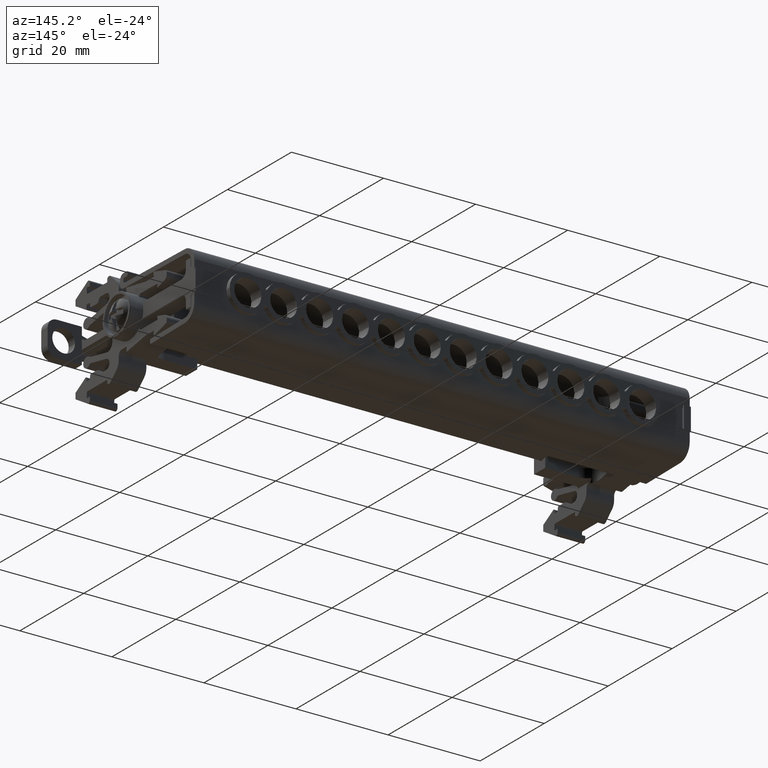
[diagram: clean part render]
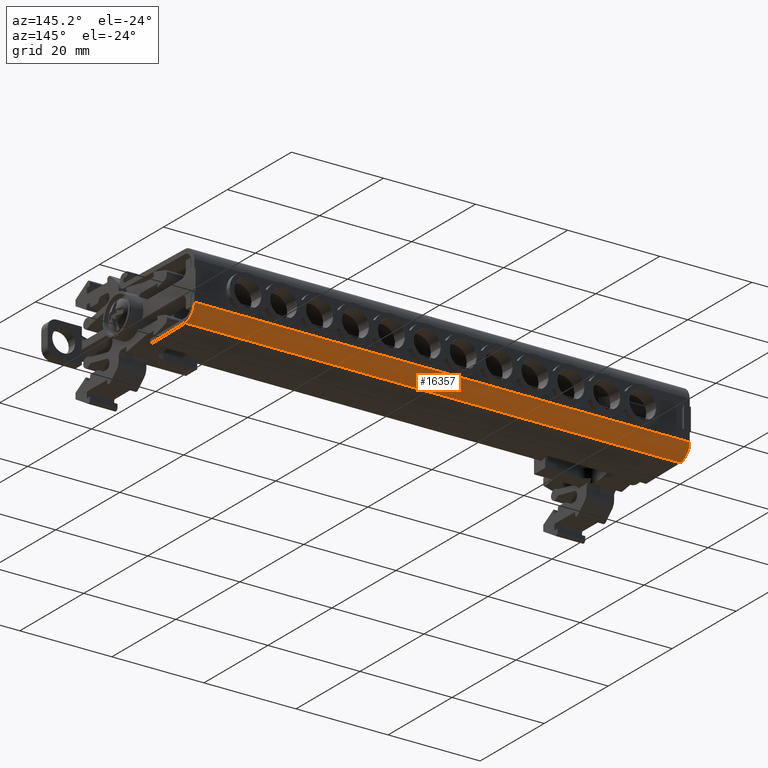
[diagram: same view with one face highlighted and labeled with its STEP entity id]
A machine part, auxiliary view. The second image highlights one B-rep face of the part: STEP entity #16357.
In plain terms, the highlighted cylindrical surface (edge-blend (fillet) strip) has radius 2.9989 mm, axis along (-1, -0, 0).
Its self-contained STEP definition (entity closure, byte-faithful):
#4704 = EDGE_LOOP ( 'NONE', ( #26989, #26993, #26947, #26948 ) ) ;
#11677 = EDGE_CURVE ( 'NONE', #29485, #29433, #12116, .T. ) ;
#11963 = EDGE_CURVE ( 'NONE', #29515, #29461, #12268, .T. ) ;
#12070 = EDGE_CURVE ( 'NONE', #29485, #29515, #17272, .T. ) ;
#12092 = VECTOR ( 'NONE', #19763, 1000.000000000000000 ) ;
#12115 = AXIS2_PLACEMENT_3D ( 'NONE', #16381, #16409, #16412 ) ;
#12116 = CIRCLE ( 'NONE', #12115, 2.998863636113954000 ) ;
#12261 = AXIS2_PLACEMENT_3D ( 'NONE', #17094, #17095, #17096 ) ;
#12268 = CIRCLE ( 'NONE', #12261, 2.998863636113954000 ) ;
#12312 = VECTOR ( 'NONE', #17236, 1000.000000000000000 ) ;
#15646 = EDGE_CURVE ( 'NONE', #29433, #29461, #19472, .T. ) ;
#16357 = ADVANCED_FACE ( 'NONE', ( #25360 ), #25353, .T. ) ;
#16381 = CARTESIAN_POINT ( 'NONE',  ( 24.22822092972948100, -24.79683233985381800, 91.79595446820579200 ) ) ;
#16409 = DIRECTION ( 'NONE',  ( 1.000000000000000000, 1.123605221867985000E-014, -1.149507329944757500E-014 ) ) ;
#16412 = DIRECTION ( 'NONE',  ( -1.156920544893285200E-014, 1.000000000000000000, 4.627682179573140900E-015 ) ) ;
#17094 = CARTESIAN_POINT ( 'NONE',  ( -83.37151391784041700, -24.79683233985458900, 91.79595446820634700 ) ) ;
#17095 = DIRECTION ( 'NONE',  ( 1.000000000000000000, 1.123605221868004800E-014, 2.470852055925285700E-015 ) ) ;
#17096 = DIRECTION ( 'NONE',  ( -9.255364359146281900E-015, 1.000000000000000000, 4.627682179573140900E-015 ) ) ;
#17236 = DIRECTION ( 'NONE',  ( -1.000000000000000000, -1.123605221867985000E-014, 1.149507329944757500E-014 ) ) ;
#17252 = CARTESIAN_POINT ( 'NONE',  ( -70.82626770582678000, -24.74449495282748800, 88.79754757355031800 ) ) ;
#17272 = LINE ( 'NONE', #17252, #12312 ) ;
#19472 = LINE ( 'NONE', #19474, #12092 ) ;
#19474 = CARTESIAN_POINT ( 'NONE',  ( 22.73827774791250500, -21.79796870373830600, 91.79595446820690100 ) ) ;
#19763 = DIRECTION ( 'NONE',  ( -1.000000000000000000, -1.123605221867985000E-014, 1.149507329944757500E-014 ) ) ;
#23649 = AXIS2_PLACEMENT_3D ( 'NONE', #25361, #25320, #25333 ) ;
#25320 = DIRECTION ( 'NONE',  ( -1.000000000000000000, -1.123605221867985000E-014, 1.149507329944757500E-014 ) ) ;
#25333 = DIRECTION ( 'NONE',  ( -9.255364359146270900E-015, -1.619688762850597300E-014, -1.000000000000000000 ) ) ;
#25353 = CYLINDRICAL_SURFACE ( 'NONE', #23649, 2.998863636113957600 ) ;
#25360 = FACE_OUTER_BOUND ( 'NONE', #4704, .T. ) ;
#25361 = CARTESIAN_POINT ( 'NONE',  ( -70.82626770582678000, -24.79683233985484500, 91.79595446820724200 ) ) ;
#26947 = ORIENTED_EDGE ( 'NONE', *, *, #12070, .T. ) ;
#26948 = ORIENTED_EDGE ( 'NONE', *, *, #11963, .T. ) ;
#26989 = ORIENTED_EDGE ( 'NONE', *, *, #15646, .F. ) ;
#26993 = ORIENTED_EDGE ( 'NONE', *, *, #11677, .F. ) ;
#29433 = VERTEX_POINT ( 'NONE', #30302 ) ;
#29461 = VERTEX_POINT ( 'NONE', #30327 ) ;
#29485 = VERTEX_POINT ( 'NONE', #30370 ) ;
#29515 = VERTEX_POINT ( 'NONE', #30355 ) ;
#30302 = CARTESIAN_POINT ( 'NONE',  ( 24.22822092972939200, -21.79796870373830600, 91.79595446820690100 ) ) ;
#30327 = CARTESIAN_POINT ( 'NONE',  ( -83.37151391783989100, -21.79796870373911200, 91.79595446820745500 ) ) ;
#30355 = CARTESIAN_POINT ( 'NONE',  ( -83.37151391783992000, -24.74449495282723200, 88.79754757354943700 ) ) ;
#30370 = CARTESIAN_POINT ( 'NONE',  ( 24.22822092972946700, -24.74449495282641500, 88.79754757354888300 ) ) ;